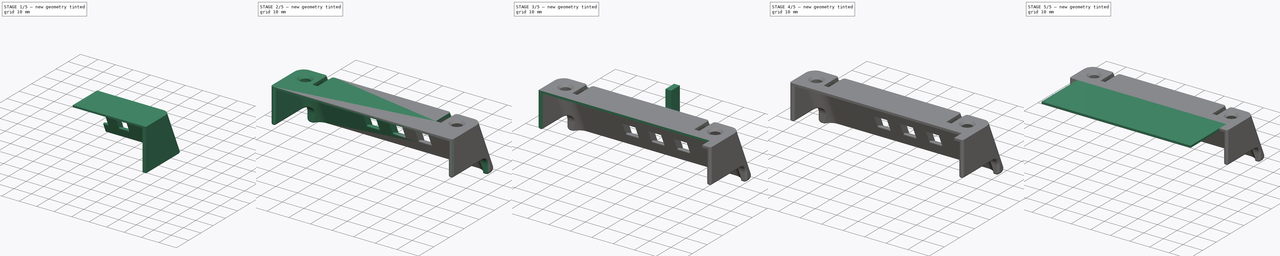
[diagram: build sequence overview — one tinted view per stage of 5, left to right]
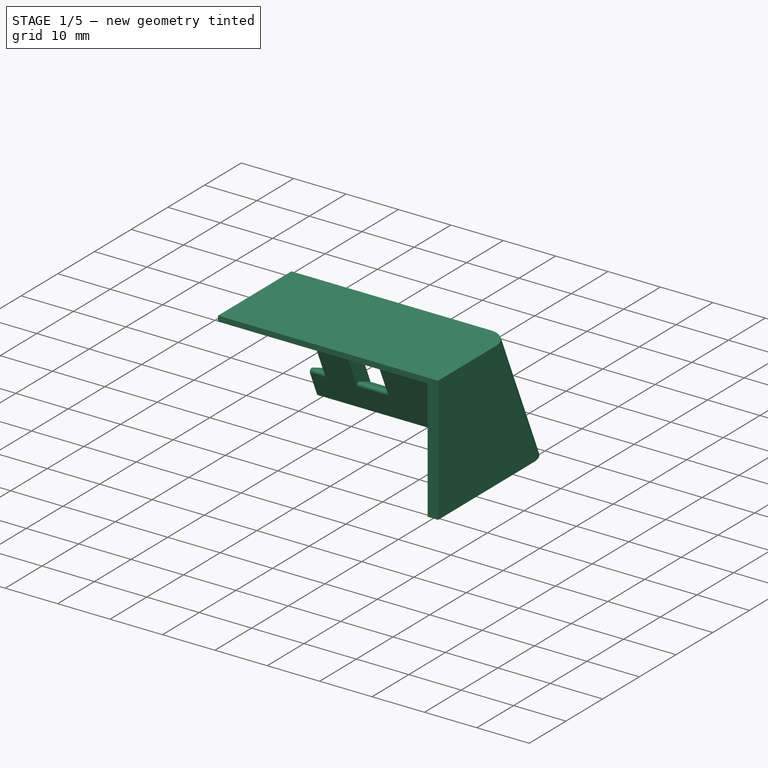
[diagram: stage 1 of 5 — iso view after this stage's code; geometry added in this stage tinted green]
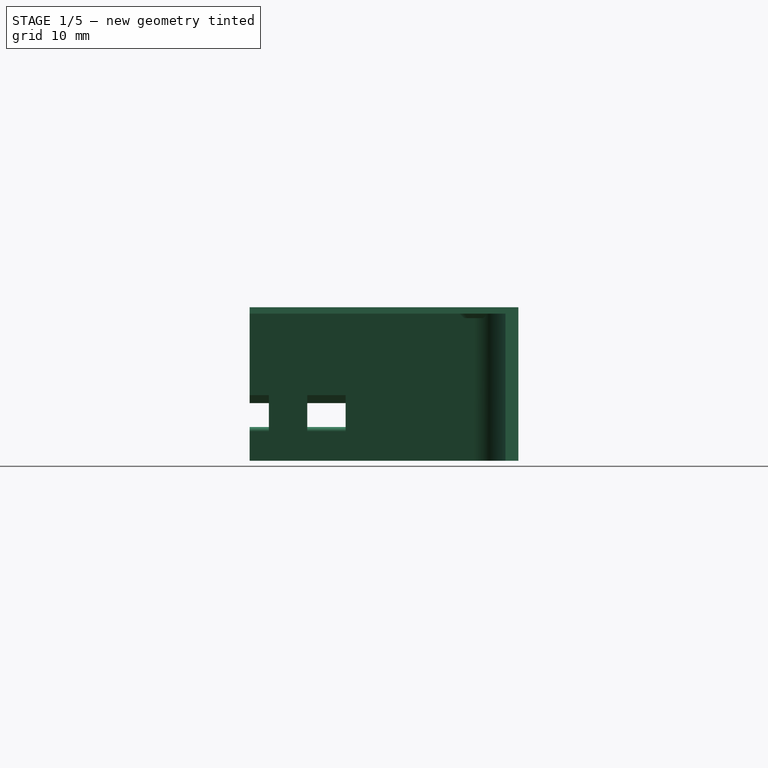
[diagram: stage 1 of 5 — front view after this stage's code; geometry added in this stage tinted green]
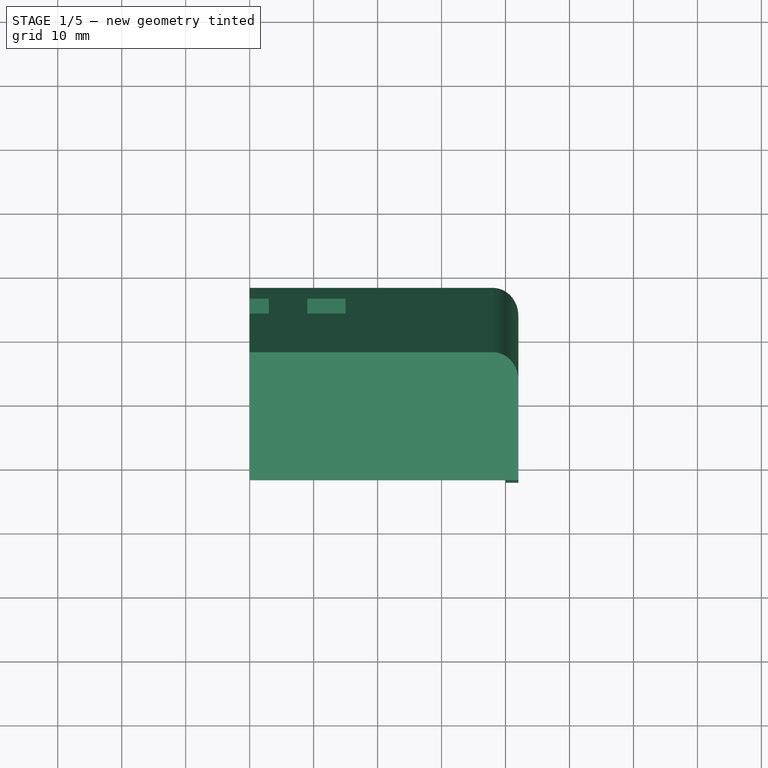
[diagram: stage 1 of 5 — top view after this stage's code; geometry added in this stage tinted green]
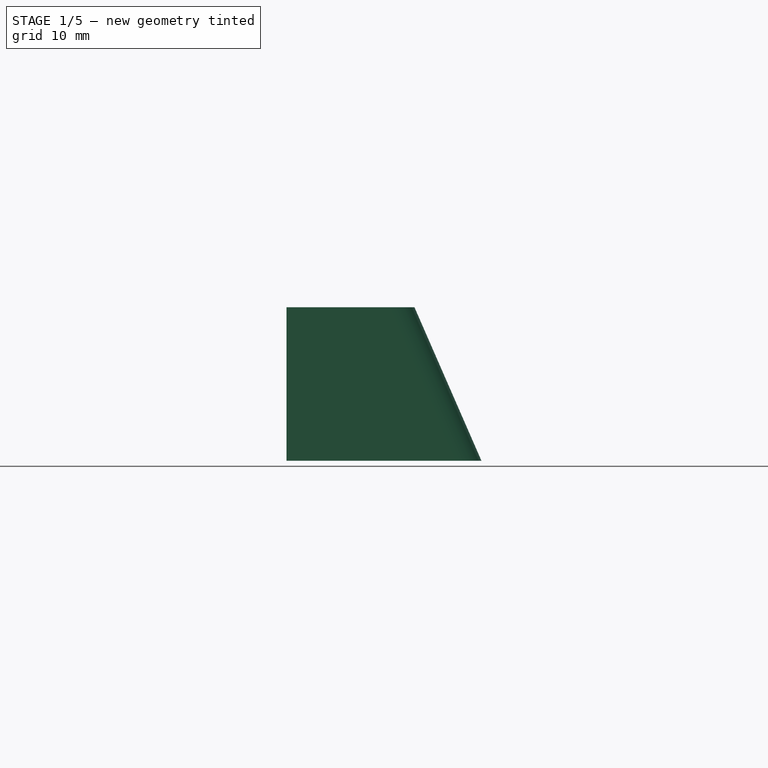
[diagram: stage 1 of 5 — right view after this stage's code; geometry added in this stage tinted green]
FCSTD DOCUMENT  (FreeCAD 0.16RUnknown)
Label: StringTensioner
License: All rights reserved
LicenseURL: http://en.wikipedia.org/wiki/All_rights_reserved
objects: Sketcher::SketchObject×14, Part::Fillet×12, Part::FeaturePython×10, Part::Cut×8, PartDesign::Pad×7, Part::Feature×3, Part::Extrusion×3, App::DocumentObjectGroup×3, PartDesign::Revolution×2, PartDesign::Pocket×2, Part::MultiFuse×2, Part::Box×1, Spreadsheet::Sheet×1, Part::Cylinder×1, Part::Mirroring×1, PartDesign::Draft×1
note: 78 computed .brp shape members not serialized (recipe doc carries the construction recipe); baked Part::Feature solids carry a one-line shape summary decoded from their .brp

FEATURE [Sketcher::SketchObject] Sketch  label="UnderCut"
  Placement = pos=(0,0,0) rot=(0.57735,0.57735,0.57735;2.0944rad)
  sketch-geometry (4):
    g0: LineSegment StartX=0 StartY=-1 StartZ=0 EndX=25 EndY=-1 EndZ=0
    g1: LineSegment StartX=25 StartY=-1 StartZ=0 EndX=38.093 EndY=-31 EndZ=0
    g2: LineSegment StartX=38.093 StartY=-31 StartZ=0 EndX=0 EndY=-31 EndZ=0
    g3: LineSegment StartX=0 StartY=-31 StartZ=0 EndX=0 EndY=-1 EndZ=0
  constraints (12):
    c: Coincident(g0,g1)
    c: Coincident(g1,g2)
    c: Coincident(g2,g3)
    c: Vertical(g3)
    c: Horizontal(g2)
    c: Horizontal(g0)
    c: Coincident(g3,g0)
    c: DistanceY(g0) = -1
    c: PointOnObject(g0,g-2)
    c: DistanceY(g3,g3) = 30
    c: DistanceX(g0,g0) = 25
    c: Angle(g0,g1) = 1.98231
FEATURE [PartDesign::Pad] Pad  label="UnderCut001"
  Length = 40
  Length2 = 100
  Placement = pos=(0,0,0) rot=(0.57735,0.57735,0.57735;2.0944rad)
  Sketch = -> Sketch
  Type = 0
FEATURE [Part::Fillet] Fillet  label="UnderCut002"
  Base = -> Pad
  Edges = 1 edges r=5: [Edge7]
FEATURE [Sketcher::SketchObject] Sketch001  label="Base"
  Placement = pos=(0,0,0) rot=(0.57735,0.57735,0.57735;2.0944rad)
  sketch-geometry (4):
    g0: LineSegment StartX=8 StartY=0 StartZ=0 EndX=8 EndY=-24 EndZ=0
    g1: LineSegment StartX=8 StartY=-24 StartZ=0 EndX=38.4744 EndY=-24 EndZ=0
    g2: LineSegment StartX=38.4744 StartY=-24 StartZ=0 EndX=28 EndY=0 EndZ=0
    g3: LineSegment StartX=28 StartY=0 StartZ=0 EndX=8 EndY=0 EndZ=0
  constraints (12):
    c: Coincident(g0,g1)
    c: Coincident(g1,g2)
    c: Coincident(g2,g3)
    c: Coincident(g3,g0)
    c: Horizontal(g3)
    c: Horizontal(g1)
    c: Vertical(g0)
    c: PointOnObject(g0,g-1)
    c: DistanceY(g0,g0) = 24
    c: Angle(g3,g2) = 1.98231
    c: DistanceX(g2) = 28
    c: DistanceX(g0) = 8
FEATURE [PartDesign::Pad] Pad001  label="Base001"
  Length = 42
  Length2 = 100
  Placement = pos=(0,0,0) rot=(0.57735,0.57735,0.57735;2.0944rad)
  Sketch = -> Sketch001
  Type = 0
FEATURE [Part::Cut] Cut
  Base = -> Pad001
  Tool = -> Fillet
FEATURE [Part::Fillet] Fillet001
  Base = -> Cut
  Edges = 1 edges r=4: [Edge21]
FEATURE [Sketcher::SketchObject] Sketch002  label="TieHoles"
  Placement = pos=(0,23.5201,10.2649) rot=(0,0.547724,0.836659;3.14159rad)
  Support = -> Fillet001 [Face2]
  sketch-geometry (9):
    g0: LineSegment StartX=-9 StartY=-28 StartZ=0 EndX=-15 EndY=-28 EndZ=0
    g1: LineSegment StartX=-15 StartY=-28 StartZ=0 EndX=-15 EndY=-33 EndZ=0
    g2: LineSegment StartX=-15 StartY=-33 StartZ=0 EndX=-9 EndY=-33 EndZ=0
    g3: LineSegment StartX=-9 StartY=-33 StartZ=0 EndX=-9 EndY=-28 EndZ=0
    g4: GeomPoint [constr] X=-12 Y=-30.5 Z=0
    g5: LineSegment StartX=-3 StartY=-28 StartZ=0 EndX=0 EndY=-28 EndZ=0
    g6: LineSegment StartX=0 StartY=-28 StartZ=0 EndX=0 EndY=-33 EndZ=0
    g7: LineSegment StartX=0 StartY=-33 StartZ=0 EndX=-3 EndY=-33 EndZ=0
    g8: LineSegment StartX=-3 StartY=-33 StartZ=0 EndX=-3 EndY=-28 EndZ=0
  constraints (25):
    c: Coincident(g0,g1)
    c: Coincident(g1,g2)
    c: Coincident(g2,g3)
    c: Coincident(g3,g0)
    c: Horizontal(g0)
    c: Horizontal(g2)
    c: Vertical(g1)
    c: Vertical(g3)
    c: DistanceX(g4) = -12
    c: DistanceY(g3,g3) = 5
    c: Symmetric(g0,g2,g4)
    c: DistanceX(g0,g0) = 6
    c: Coincident(g5,g6)
    c: Coincident(g6,g7)
    c: Coincident(g7,g8)
    c: Coincident(g8,g5)
    c: Horizontal(g5)
    c: Horizontal(g7)
    c: Vertical(g6)
    c: Vertical(g8)
    c: PointOnObject(g5,g0)
    c: PointOnObject(g7,g2)
    c: PointOnObject(g6,g-2)
    c: DistanceX(g5,g5) = 3
    c: DistanceY(g4) = -30.5
FEATURE [Part::Extrusion] Extrude  label="TieHoles001"
  Base = -> Sketch002
  Dir = (0,-5,2)
  Solid = true
FEATURE [Part::Cut] Cut001
  Base = -> Fillet001
  Tool = -> Extrude
FEATURE [Part::Fillet] Fillet002
  Base = -> Cut001
  Edges = 4 edges r=0.5: [Edge12,Edge16,Edge30,Edge35]
FEATURE [Sketcher::SketchObject] Sketch003  label="CounterSink"
  Placement = pos=(0,0,0) rot=(1,0,0;1.5708rad)
  sketch-geometry (4):
    g0: LineSegment StartX=0 StartY=0 StartZ=0 EndX=3.2 EndY=0 EndZ=0
    g1: LineSegment StartX=0 StartY=0 StartZ=0 EndX=0 EndY=-1.7 EndZ=0
    g2: LineSegment StartX=0 StartY=-1.7 StartZ=0 EndX=1.5 EndY=-1.7 EndZ=0
    g3: LineSegment StartX=1.5 StartY=-1.7 StartZ=0 EndX=3.2 EndY=0 EndZ=0
  constraints (11):
    c: Coincident(g1,g0)
    c: Vertical(g1)
    c: Horizontal(g0)
    c: Coincident(g0,g-1)
    c: Coincident(g2,g3)
    c: Coincident(g2,g1)
    c: Horizontal(g2)
    c: DistanceX(g2,g2) = 1.5
    c: Coincident(g3,g0)
    c: Angle(g0,g3) = 0.785398
    c: DistanceY(g1,g1) = 1.7
FEATURE [PartDesign::Revolution] Revolution  label="M3CounterSink"
  Angle = 360
  Axis = (0,0,1)
  Base = (0,0,0)
  Placement = pos=(0,0,0) rot=(1,0,0;1.5708rad)
  ReferenceAxis = -> Sketch003 [V_Axis]
  Reversed = true
  Sketch = -> Sketch003
FEATURE [Part::FeaturePython] Clone  label="Clone of M3CounterSink"  # Draft clone (typed FeaturePython)
  Objects = -> [Revolution]
  Placement = pos=(35,21,0) rot=(1,0,0;1.5708rad)
  Scale = (1,1,1)
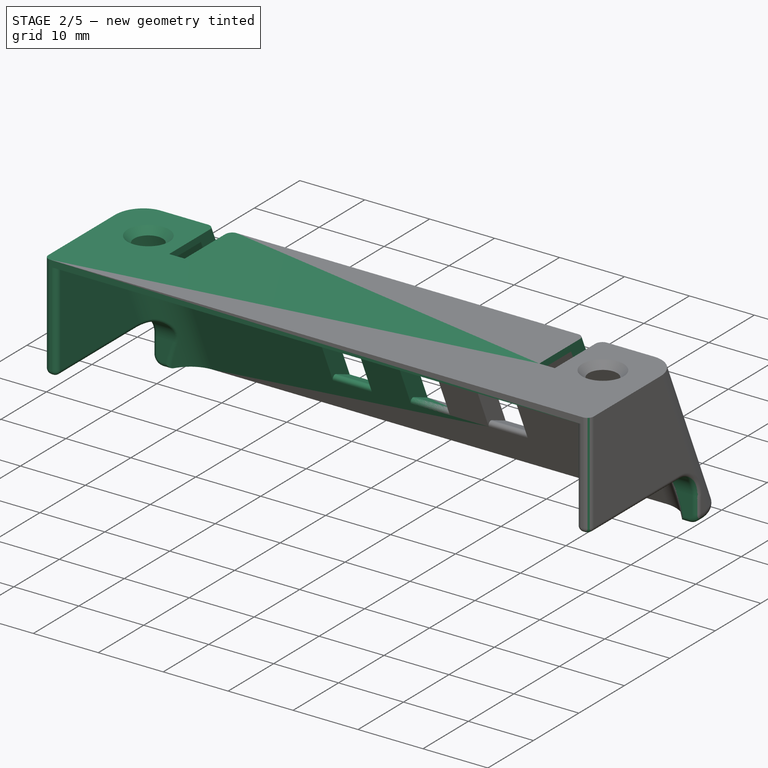
[diagram: stage 2 of 5 — iso view after this stage's code; geometry added in this stage tinted green]
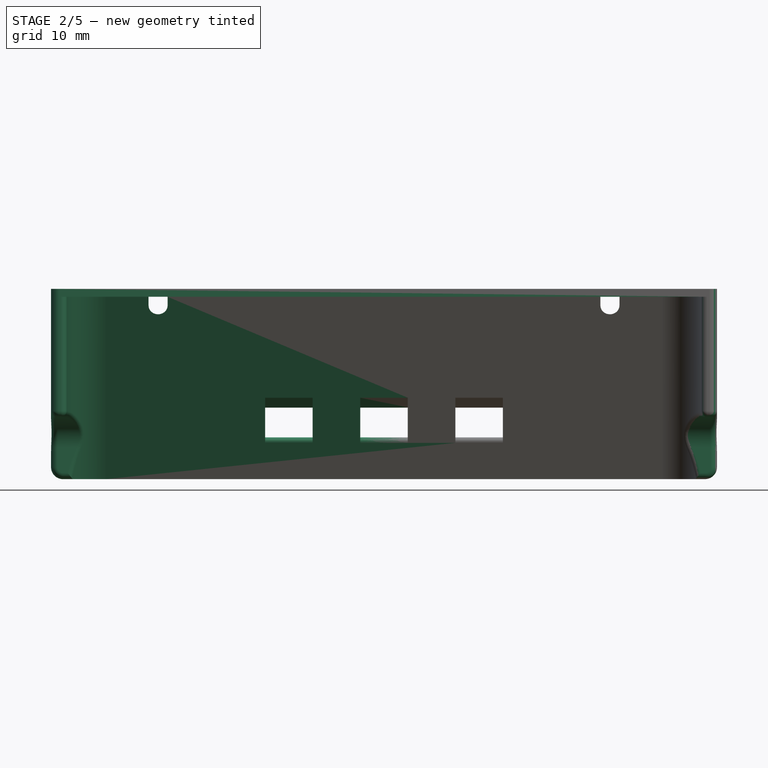
[diagram: stage 2 of 5 — front view after this stage's code; geometry added in this stage tinted green]
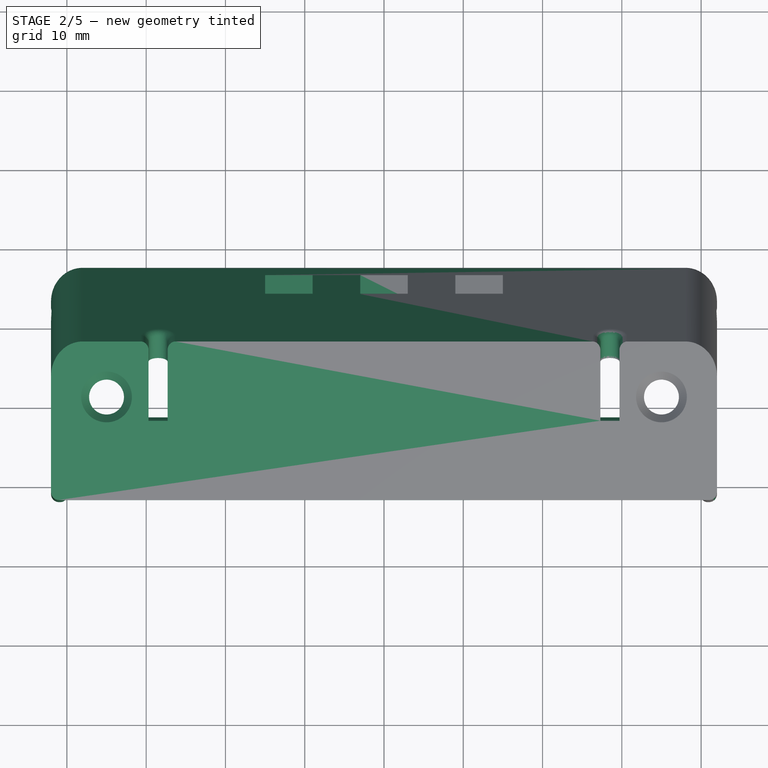
[diagram: stage 2 of 5 — top view after this stage's code; geometry added in this stage tinted green]
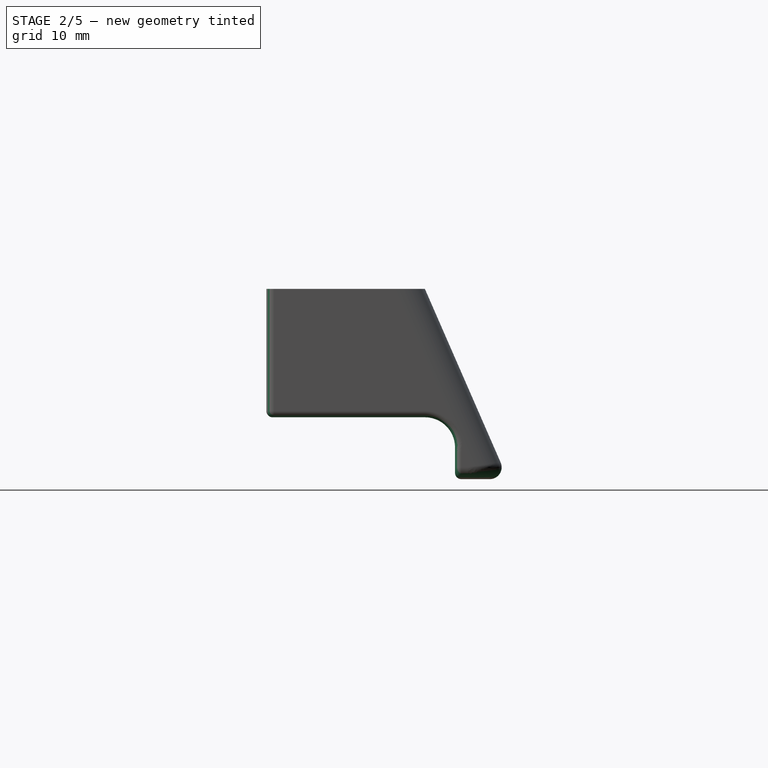
[diagram: stage 2 of 5 — right view after this stage's code; geometry added in this stage tinted green]
FEATURE [Part::Cut] Cut002  label="CounterSinkCut"
  Base = -> Fillet002
  Tool = -> Clone
FEATURE [Part::Fillet] Fillet003
  Base = -> Cut002
  Edges = 1 edges r=1.5: [Edge7]
FEATURE [Sketcher::SketchObject] Sketch005  label="StringPath"
  Placement = pos=(0,23.5201,10.2649) rot=(0,0.547724,0.836659;3.14159rad)
  Support = -> Fillet003 [Face1]
  sketch-geometry (4):
    g0: ArcOfCircle CenterX=-28.5 CenterY=-13.5 CenterZ=0 NormalX=0 NormalY=0 NormalZ=1 Radius=1.2 StartAngle=3.14159 EndAngle=6.28319
    g1: LineSegment StartX=-29.7 StartY=-13.5 StartZ=0 EndX=-29.7 EndY=-9.82157 EndZ=0
    g2: LineSegment StartX=-29.7 StartY=-9.82157 StartZ=0 EndX=-27.3 EndY=-9.82157 EndZ=0
    g3: LineSegment StartX=-27.3 StartY=-9.82157 StartZ=0 EndX=-27.3 EndY=-13.5 EndZ=0
  constraints (12):
    c: Coincident(g1,g2)
    c: Coincident(g2,g3)
    c: Coincident(g1,g0)
    c: Coincident(g3,g0)
    c: Vertical(g1)
    c: Vertical(g3)
    c: Horizontal(g2)
    c: Tangent(g0,g1)
    c: Tangent(g3,g0)
    c: DistanceX(g0) = -28.5
    c: Radius(g0) = 1.2
    c: DistanceY(g0) = -13.5
FEATURE [Part::Extrusion] Extrude001  label="StringPath001"
  Base = -> Sketch005
  Dir = (0,-10,0)
  Solid = true
FEATURE [Part::Cut] Cut003
  Base = -> Fillet003
  Tool = -> Extrude001
FEATURE [Part::Fillet] Fillet004  label="NiceFillet"
  Base = -> Cut003
  Edges = 1 edges r=1: [Edge9]
FEATURE [Part::Fillet] Fillet005
  Base = -> Fillet004
  Edges = 1 edges r=1: [Edge76]
FEATURE [Part::Feature] LYcarriage_step1_01001  label="LYcarriage"
  Placement = pos=(-30,0,-36) rot=(0,0,1;0rad)
  shape: bbox 37 x 62 x 39 mm, 139 faces (baked)
FEATURE [App::DocumentObjectGroup] Group  label="Reference"
  Group = -> [Fusion002001,Box002,Clone001,Clone002,Clone003,Clone004,Clone005,Clone006,LYcarriage_step1_01001]
FEATURE [Sketcher::SketchObject] Sketch013  label="AntiCollitionCut"
  Placement = pos=(42,0,0) rot=(0.57735,0.57735,0.57735;2.0944rad)
  Support = -> Fillet005 [Face2]
  sketch-geometry (5):
    g0: LineSegment StartX=-1.71827 StartY=-16.2 StartZ=0 EndX=28 EndY=-16.2 EndZ=0
    g1: LineSegment StartX=31.8 StartY=-20 StartZ=0 EndX=31.8 EndY=-28.8814 EndZ=0
    g2: LineSegment StartX=31.8 StartY=-28.8814 StartZ=0 EndX=-1.71827 EndY=-28.8814 EndZ=0
    g3: LineSegment StartX=-1.71827 StartY=-28.8814 StartZ=0 EndX=-1.71827 EndY=-16.2 EndZ=0
    g4: ArcOfCircle CenterX=28 CenterY=-20 CenterZ=0 NormalX=0 NormalY=0 NormalZ=1 Radius=3.8 StartAngle=0 EndAngle=1.5708
  constraints (12):
    c: Coincident(g1,g2)
    c: Coincident(g2,g3)
    c: Coincident(g3,g0)
    c: Horizontal(g0)
    c: Horizontal(g2)
    c: Vertical(g1)
    c: Vertical(g3)
    c: Tangent(g0,g4) = 1.5708
    c: Tangent(g1,g4) = 1.5708
    c: DistanceX(g4) = 28
    c: DistanceY(g4) = -20
    c: Radius(g4) = 3.8
FEATURE [PartDesign::Pocket] Pocket001  label="AntiCollitionCut001"
  Length = 5
  Sketch = -> Sketch013
  Type = 1
FEATURE [Part::Fillet] Fillet012
  Base = -> Pocket001
  Edges = 3 edges r=0.8: [Edge24,Edge27,Edge72]
FEATURE [Part::Mirroring] Part__Mirroring  label="Fillet012 (Mirror #1)"
  Base = (0,0,0)
  Normal = (1,0,0)
  Source = -> Fillet012
FEATURE [Part::MultiFuse] Fusion  label="Mirroring"
  Shapes = -> [Part__Mirroring,Fillet012]
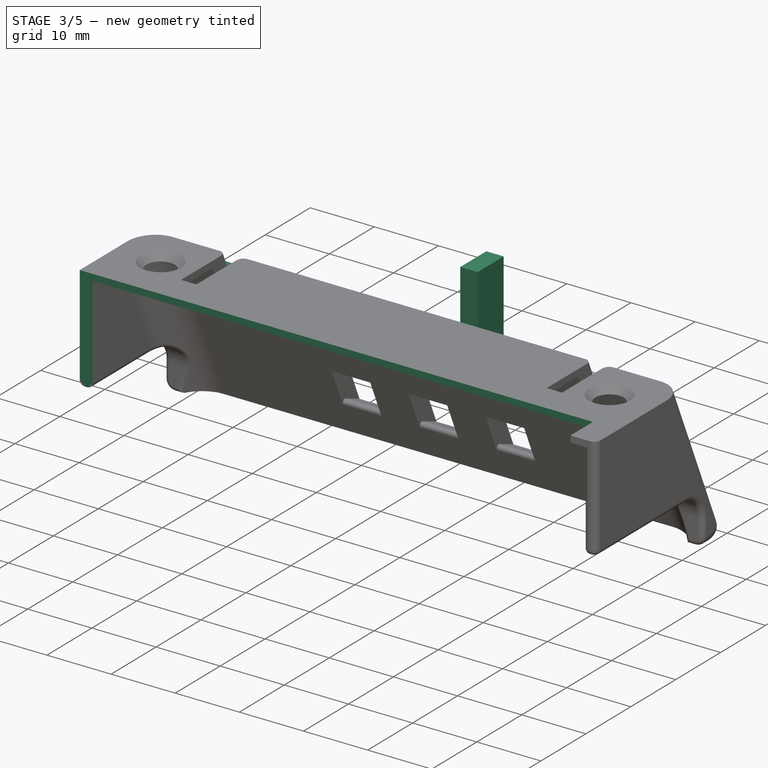
[diagram: stage 3 of 5 — iso view after this stage's code; geometry added in this stage tinted green]
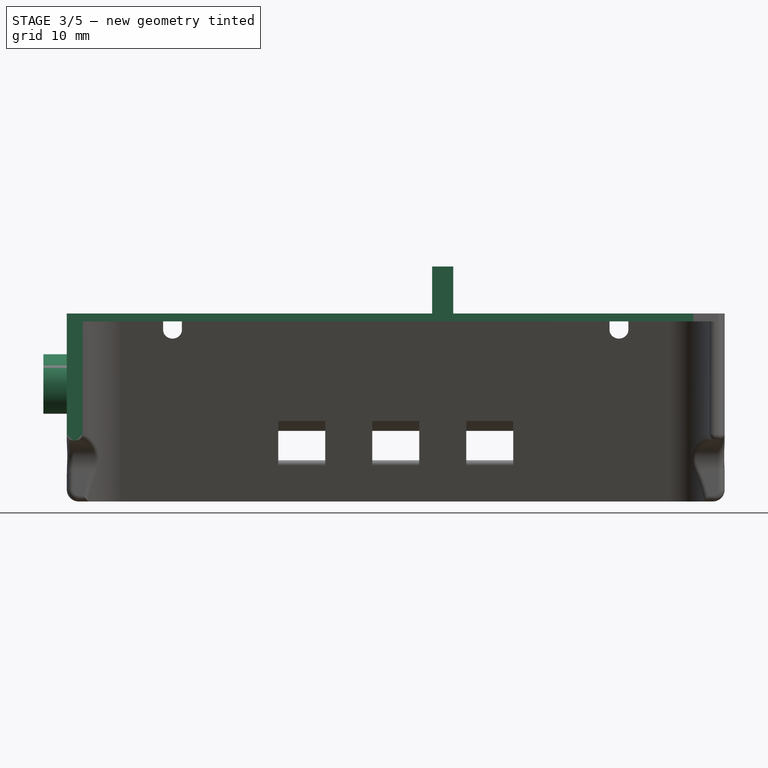
[diagram: stage 3 of 5 — front view after this stage's code; geometry added in this stage tinted green]
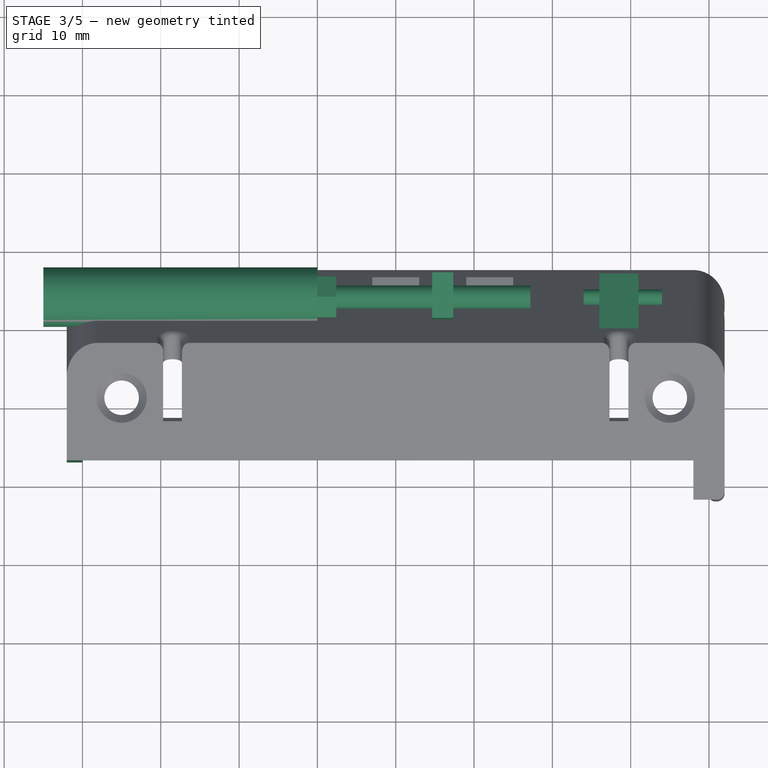
[diagram: stage 3 of 5 — top view after this stage's code; geometry added in this stage tinted green]
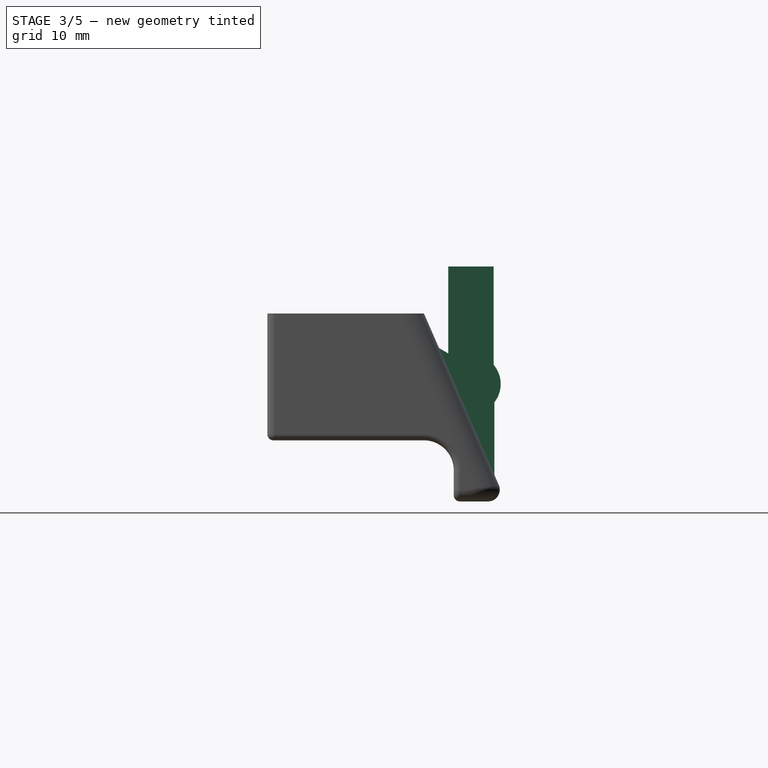
[diagram: stage 3 of 5 — right view after this stage's code; geometry added in this stage tinted green]
FEATURE [Sketcher::SketchObject] Sketch008  label="M3Nut"
  sketch-geometry (7):
    g0: LineSegment StartX=2.60241 StartY=-1.5025 StartZ=0 EndX=2.60241 EndY=1.5025 EndZ=0
    g1: LineSegment StartX=2.60241 StartY=1.5025 StartZ=0 EndX=0 EndY=3.005 EndZ=0
    g2: LineSegment StartX=0 StartY=3.005 StartZ=0 EndX=-2.60241 EndY=1.5025 EndZ=0
    g3: LineSegment StartX=-2.60241 StartY=1.5025 StartZ=0 EndX=-2.60241 EndY=-1.5025 EndZ=0
    g4: LineSegment StartX=-2.60241 StartY=-1.5025 StartZ=0 EndX=0 EndY=-3.005 EndZ=0
    g5: LineSegment StartX=0 StartY=-3.005 StartZ=0 EndX=2.60241 EndY=-1.5025 EndZ=0
    g6: Circle [constr] CenterX=0 CenterY=0 CenterZ=0 NormalX=0 NormalY=0 NormalZ=1 Radius=3.005
  constraints (16):
    c: Coincident(g0,g1)
    c: Coincident(g1,g2)
    c: Coincident(g2,g3)
    c: Coincident(g3,g4)
    c: Coincident(g4,g5)
    c: Coincident(g5,g0)
    c: Equal(g0, g1-g5) x5
    c: PointOnObject(g0,g6)
    c: PointOnObject(g1,g6)
    c: PointOnObject(g2,g6)
    c: PointOnObject(g3,g6)
    c: PointOnObject(g4,g6)
    c: PointOnObject(g5,g6)
    c: Coincident(g6,g-1)
    c: Radius(g6) = 3.005
    c: Vertical(g3)
FEATURE [PartDesign::Pad] Pad004  label="M3Nut001"
  Length = 2.4
  Length2 = 100
  Sketch = -> Sketch008
  Type = 0
FEATURE [Part::FeaturePython] Clone003  label="Clone of M3Nut002"  # Draft clone (typed FeaturePython)
  Objects = -> [Pad004]
  Placement = pos=(-10,34,-9) rot=(0,1,0;1.5708rad)
  Scale = (1,1,1)
FEATURE [Sketcher::SketchObject] Sketch010  label="Lane"
  Placement = pos=(1,34,-9) rot=(0,0.707107,0.707107;3.14159rad)
  sketch-geometry (6):
    g0: LineSegment StartX=-16.2014 StartY=1.5 StartZ=0 EndX=-16.2014 EndY=0 EndZ=0
    g1: LineSegment StartX=-16.2014 StartY=0 StartZ=0 EndX=45.9934 EndY=0 EndZ=0
    g2: LineSegment StartX=45.9934 StartY=0 StartZ=0 EndX=45.9934 EndY=3.8 EndZ=0
    g3: LineSegment StartX=45.9934 StartY=3.8 StartZ=0 EndX=11 EndY=3.8 EndZ=0
    g4: LineSegment StartX=11 StartY=3.8 StartZ=0 EndX=11 EndY=1.5 EndZ=0
    g5: LineSegment StartX=11 StartY=1.5 StartZ=0 EndX=-16.2014 EndY=1.5 EndZ=0
  constraints (16):
    c: Coincident(g0,g1)
    c: Coincident(g1,g2)
    c: Coincident(g2,g3)
    c: Coincident(g3,g4)
    c: Coincident(g4,g5)
    c: Coincident(g5,g0)
    c: Horizontal(g5)
    c: Horizontal(g1)
    c: Horizontal(g3)
    c: Vertical(g0)
    c: Vertical(g4)
    c: Vertical(g2)
    c: DistanceY(g0,g0) = 1.5
    c: DistanceY(g2,g2) = 3.8
    c: PointOnObject(g0,g-1)
    c: DistanceX(g3) = 11
FEATURE [PartDesign::Revolution] Revolution001  label="Lane001"
  Angle = 360
  Axis = (-1,0,0)
  Base = (1,34,-9)
  Placement = pos=(1,34,-9) rot=(0,0.707107,0.707107;3.14159rad)
  ReferenceAxis = -> Sketch010 [H_Axis]
  Sketch = -> Sketch010
FEATURE [Part::FeaturePython] Clone007  label="Clone of Clone of M3Nut002"  # Draft clone (typed FeaturePython)
  Objects = -> [Clone003]
  Placement = pos=(-10,34,-9) rot=(0.57735,0.57735,0.57735;2.0944rad)
  Scale = (1,1,1)
FEATURE [Spreadsheet::Sheet] Spreadsheet  label="Params"
  cells = A1=Bolt Clearance; B1=0; A2=Nut Radius Clearance; B2=0.5; A3=Nut Height Clearance; B3=0.3; A4=Nut Side to side Clearance; B4=0.3
FEATURE [Sketcher::SketchObject] Sketch011  label="NutSlot"
  expr: Constraints[11] = 5.5 + Params.B4
  sketch-geometry (6):
    g0: LineSegment StartX=-14.9933 StartY=2.9 StartZ=0 EndX=-14.9933 EndY=-2.9 EndZ=0
    g1: LineSegment StartX=-14.9933 StartY=-2.9 StartZ=0 EndX=1.67432 EndY=-2.9 EndZ=0
    g2: LineSegment StartX=1.67432 StartY=-2.9 StartZ=0 EndX=3.34863 EndY=0 EndZ=0
    g3: LineSegment StartX=3.34863 StartY=0 StartZ=0 EndX=1.67432 EndY=2.9 EndZ=0
    g4: LineSegment StartX=1.67432 StartY=2.9 StartZ=0 EndX=-14.9933 EndY=2.9 EndZ=0
    g5: ArcOfCircle [constr] CenterX=0 CenterY=0 CenterZ=0 NormalX=0 NormalY=0 NormalZ=1 Radius=3.34863 StartAngle=5.23599 EndAngle=7.33038
  constraints (16):
    c: Coincident(g0,g1)
    c: Coincident(g1,g2)
    c: Coincident(g2,g3)
    c: Coincident(g3,g4)
    c: Coincident(g0,g4)
    c: Horizontal(g4)
    c: Horizontal(g1)
    c: Vertical(g0)
    c: PointOnObject(g2,g-1)
    c: Symmetric(g3,g1,g-1)
    c: Angle(g3,g2) = 2.0944
    c: DistanceY(g0,g0) = 5.8
    c: Coincident(g5,g-1)
    c: Coincident(g5,g3)
    c: Coincident(g5,g1)
    c: PointOnObject(g2,g5)
FEATURE [PartDesign::Pad] Pad006  label="NutSlot001"
  Length = 2.7
  Length2 = 100
  Midplane = true
  Sketch = -> Sketch011
  Type = 0
  expr: Length = 2.4 + Params.B3
FEATURE [Part::FeaturePython] Clone008  label="Clone of NutSlot001"  # Draft clone (typed FeaturePython)
  Objects = -> [Pad006]
  Placement = pos=(6,34,-9) rot=(0,1,0;1.5708rad)
  Scale = (1,1,1)
FEATURE [Sketcher::SketchObject] Sketch012  label="StringFix"
  Placement = pos=(0,0,0) rot=(0.57735,0.57735,0.57735;2.0944rad)
  sketch-geometry (3):
    g0: LineSegment StartX=-7.63217 StartY=4.40643 StartZ=0 EndX=0 EndY=-13.0812 EndZ=0
    g1: LineSegment StartX=0 StartY=-13.0812 StartZ=0 EndX=0 EndY=0 EndZ=0
    g2: LineSegment StartX=0 StartY=0 StartZ=0 EndX=-7.63217 EndY=4.40643 EndZ=0
  constraints (7):
    c: Coincident(g0,g1)
    c: Coincident(g1,g2)
    c: Coincident(g2,g0)
    c: Angle(g2,g1) = 2.0944
    c: Angle(g0,g-1) = 1.15928
    c: Angle(g2) = 2.61799
    c: Coincident(g1,g-1)
FEATURE [Part::Extrusion] Extrude002  label="StringFix001"
  Base = -> Sketch012
  Dir = (5,0,0)
  Placement = pos=(26,37,-8.5) rot=(0,0,1;0rad)
  Solid = true
FEATURE [Part::Cylinder] Cylinder  label="StringFixHole"
  Angle = 360
  Height = 10
  Radius = 1
FEATURE [App::DocumentObjectGroup] Group001  label="Bolt_src"
  Group = -> [Revolution,Pad003,Pad002,Pad004,Pad006,Cylinder]
FEATURE [Part::FeaturePython] Clone009  label="Clone of StringFixHole"  # Draft clone (typed FeaturePython)
  Objects = -> [Cylinder]
  Placement = pos=(24,34,-10) rot=(0,1,0;1.5708rad)
  Scale = (1,1,1)
FEATURE [Sketcher::SketchObject] Sketch004  label="SampleCut"
  Support = -> Fusion [Face83]
  sketch-geometry (4):
    g0: LineSegment StartX=38 StartY=13 StartZ=0 EndX=-47.7459 EndY=13 EndZ=0
    g1: LineSegment StartX=-47.7459 StartY=13 StartZ=0 EndX=-47.7459 EndY=-4.17168 EndZ=0
    g2: LineSegment StartX=-47.7459 StartY=-4.17168 StartZ=0 EndX=38 EndY=-4.17168 EndZ=0
    g3: LineSegment StartX=38 StartY=-4.17168 StartZ=0 EndX=38 EndY=13 EndZ=0
  constraints (10):
    c: Coincident(g0,g1)
    c: Coincident(g1,g2)
    c: Coincident(g2,g3)
    c: Coincident(g3,g0)
    c: Horizontal(g0)
    c: Horizontal(g2)
    c: Vertical(g1)
    c: Vertical(g3)
    c: DistanceX(g0) = 38
    c: DistanceY(g0) = 13
FEATURE [PartDesign::Pocket] Pocket
  Length = 5
  Sketch = -> Sketch004
  Type = 1
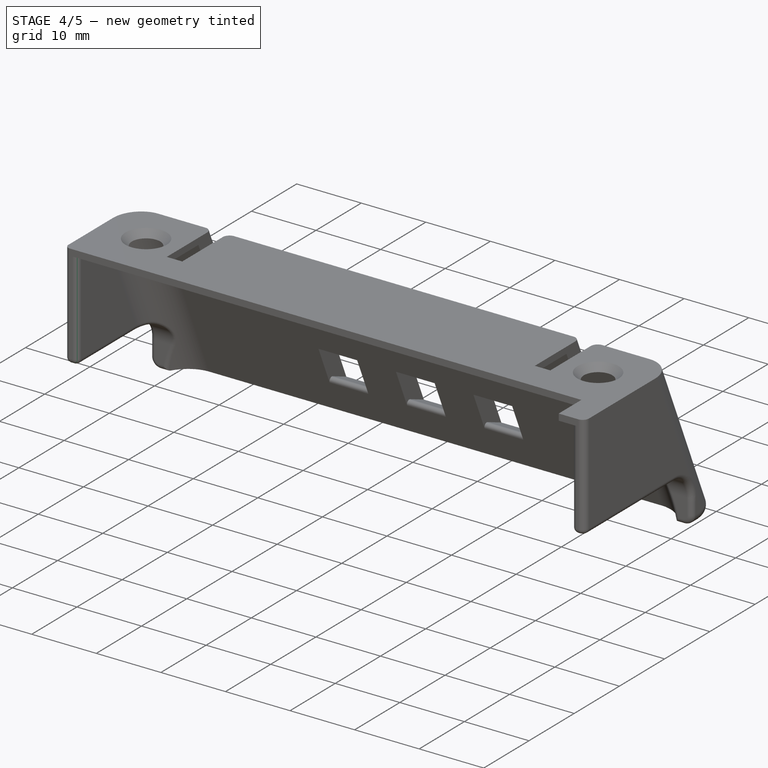
[diagram: stage 4 of 5 — iso view after this stage's code; geometry added in this stage tinted green]
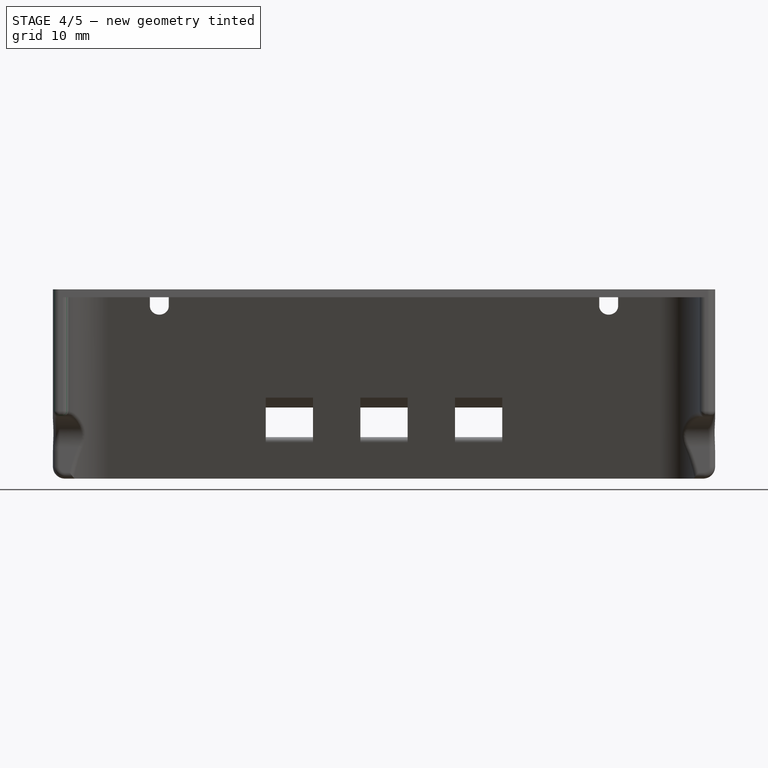
[diagram: stage 4 of 5 — front view after this stage's code; geometry added in this stage tinted green]
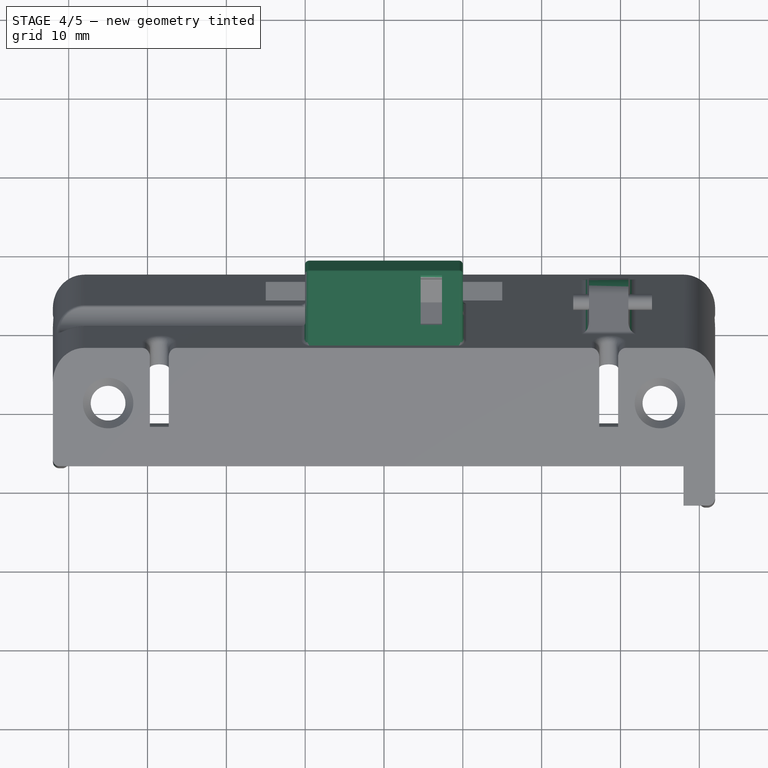
[diagram: stage 4 of 5 — top view after this stage's code; geometry added in this stage tinted green]
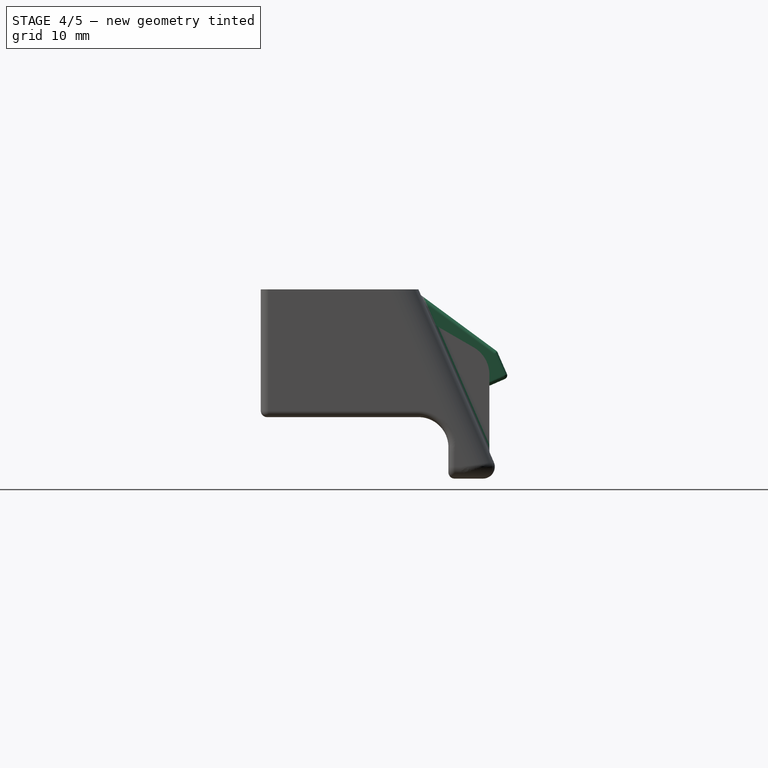
[diagram: stage 4 of 5 — right view after this stage's code; geometry added in this stage tinted green]
FEATURE [Part::Fillet] Fillet006
  Base = -> Pocket
  Edges = 1 edges r=0.8: [Edge93]
FEATURE [Sketcher::SketchObject] Sketch009  label="NutHousing"
  Placement = pos=(0,23.5201,10.2649) rot=(0,0.547724,0.836659;3.14159rad)
  Support = -> Fillet006 [Face9]
  sketch-geometry (4):
    g0: LineSegment StartX=-10 StartY=-12 StartZ=0 EndX=10 EndY=-12 EndZ=0
    g1: LineSegment StartX=10 StartY=-12 StartZ=0 EndX=10 EndY=-26 EndZ=0
    g2: LineSegment StartX=10 StartY=-26 StartZ=0 EndX=-10 EndY=-26 EndZ=0
    g3: LineSegment StartX=-10 StartY=-26 StartZ=0 EndX=-10 EndY=-12 EndZ=0
  constraints (12):
    c: Coincident(g0,g1)
    c: Coincident(g1,g2)
    c: Coincident(g2,g3)
    c: Coincident(g3,g0)
    c: Horizontal(g0)
    c: Horizontal(g2)
    c: Vertical(g1)
    c: Vertical(g3)
    c: DistanceX(g2,g2) = 20
    c: DistanceY(g1) = -26
    c: DistanceY(g0) = -12
    c: DistanceX(g0,g-1) = 10
FEATURE [PartDesign::Pad] Pad005  label="NutHousing001"
  Length = 6
  Length2 = 100
  Sketch = -> Sketch009
  Type = 0
FEATURE [PartDesign::Draft] Draft  label="PrintableDraft"
  Angle = 60
  Base = -> Pad005 [Face2]
  NeutralPlane = -> Pad005 [Face6]
FEATURE [Part::Cut] Cut004  label="LaneCut"
  Base = -> Draft
  Tool = -> Revolution001
FEATURE [Part::Fillet] Fillet007
  Base = -> Cut004
  Edges = 15 edges r=0.5: [Edge1,Edge2,Edge3,Edge4,Edge5,Edge7,Edge8,Edge9,Edge10,Edge11,Edge18,Edge19,Edge20,Edge21,Edge73]
FEATURE [Part::Cut] Cut005  label="NutCut"
  Base = -> Fillet007
  Tool = -> Clone007
FEATURE [Part::Cut] Cut006
  Base = -> Cut005
  Tool = -> Clone008
FEATURE [Part::Fillet] Fillet008  label="AntiCreaseFillet"
  Base = -> Cut006
  Edges = 2 edges r=0.3: [Edge25,Edge27]
FEATURE [Part::MultiFuse] Fusion002002  label="StringFix002"
  Shapes = -> [Fillet008,Extrude002]
FEATURE [Part::Fillet] Fillet009
  Base = -> Fusion002002
  Edges = 5 edges: [Edge54 r=1,Edge55 r=1,Edge56 r=1,Edge57 r=1,Edge161 r=4]
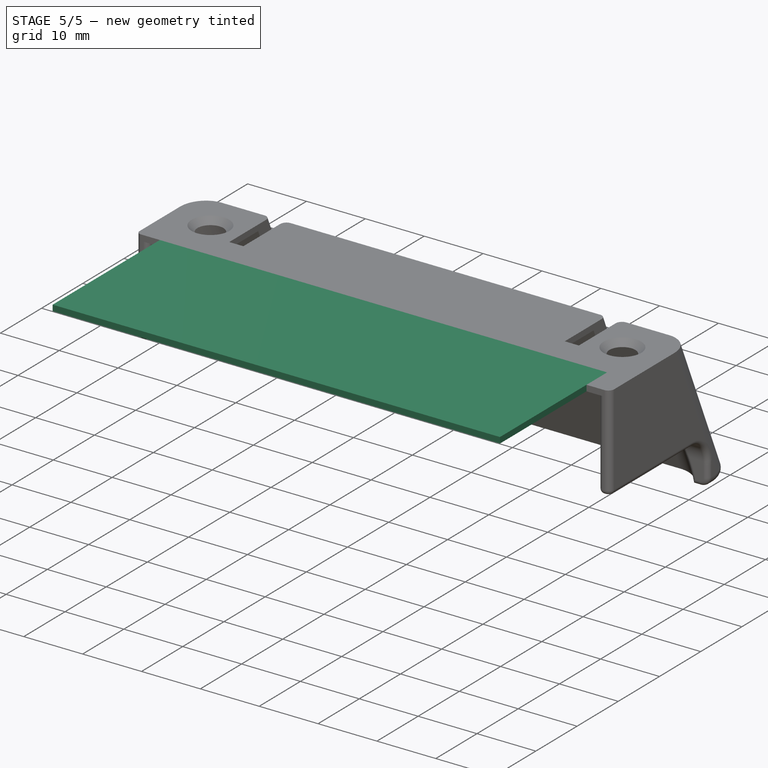
[diagram: stage 5 of 5 — iso view after this stage's code; geometry added in this stage tinted green]
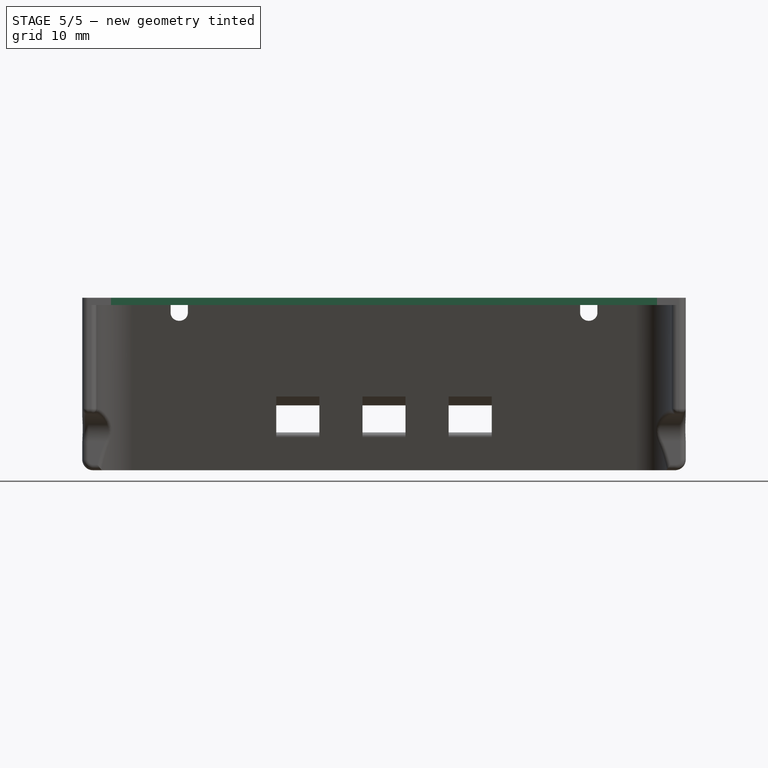
[diagram: stage 5 of 5 — front view after this stage's code; geometry added in this stage tinted green]
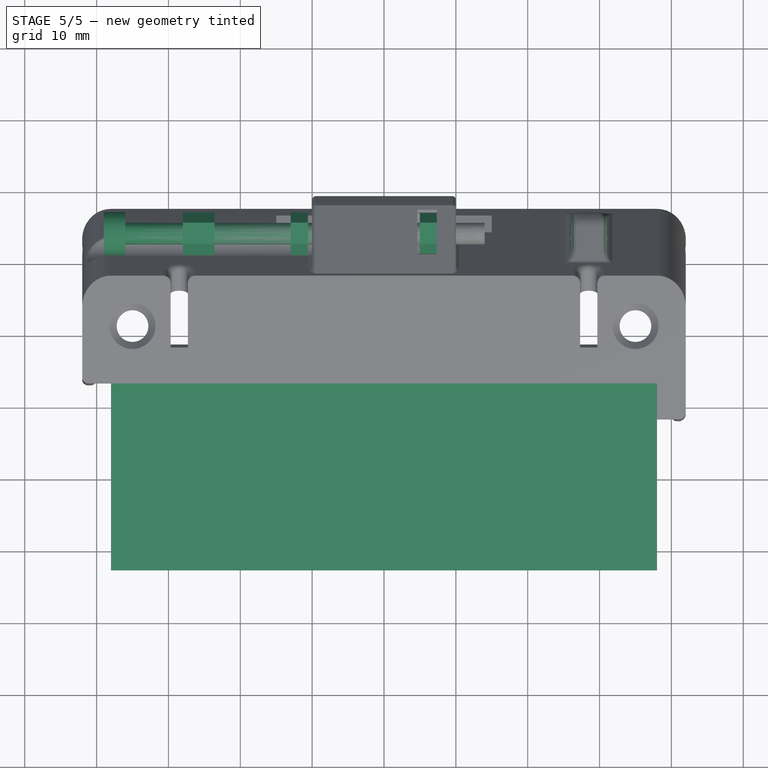
[diagram: stage 5 of 5 — top view after this stage's code; geometry added in this stage tinted green]
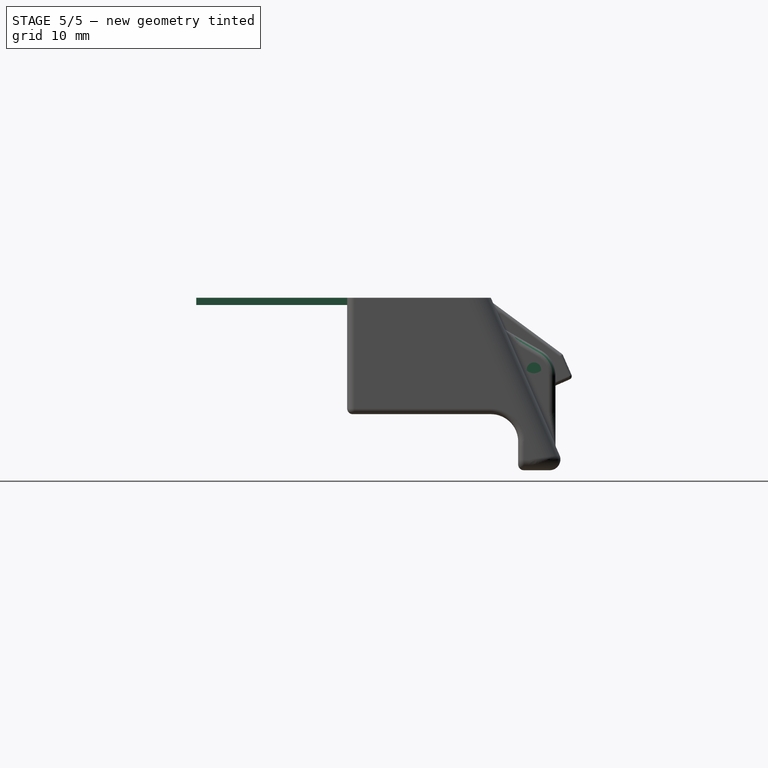
[diagram: stage 5 of 5 — right view after this stage's code; geometry added in this stage tinted green]
FEATURE [Part::Feature] Fusion002001  label="XCarriage"
  Placement = pos=(0,0,-1) rot=(0,0,1;3.14159rad)
  shape: bbox 81.03 x 70.18 x 40.02 mm, 182 faces (baked)
FEATURE [Part::Box] Box002  label="SampleMaster001"
  Height = 1
  Length = 26
  Placement = pos=(38,-13,-1) rot=(0,0,1;1.5708rad)
  Width = 76
FEATURE [Sketcher::SketchObject] Sketch006  label="M3Head"
  sketch-geometry (1):
    g0: Circle CenterX=0 CenterY=0 CenterZ=0 NormalX=0 NormalY=0 NormalZ=1 Radius=3
  constraints (2):
    c: Coincident(g0,g-1)
    c: Radius(g0) = 3
FEATURE [PartDesign::Pad] Pad002  label="M3Head001"
  Length = 3
  Length2 = 100
  Reversed = true
  Sketch = -> Sketch006
  Type = 0
FEATURE [Sketcher::SketchObject] Sketch007  label="M3Thread"
  Support = -> Pad002 [Face2]
  sketch-geometry (1):
    g0: Circle CenterX=0 CenterY=0 CenterZ=0 NormalX=0 NormalY=0 NormalZ=1 Radius=1.5
  constraints (2):
    c: Coincident(g0,g-1)
    c: Radius(g0) = 1.5
FEATURE [PartDesign::Pad] Pad003  label="M3Thread001"
  Length = 50
  Length2 = 100
  Sketch = -> Sketch007
  Type = 0
FEATURE [Part::FeaturePython] Clone001  label="Clone of M3Nut001"  # Draft clone (typed FeaturePython)
  Objects = -> [Pad004]
  Placement = pos=(5,34,-9) rot=(0,1,0;1.5708rad)
  Scale = (1,1,1)
FEATURE [Part::FeaturePython] Clone002  label="Clone of M3Thread001"  # Draft clone (typed FeaturePython)
  Objects = -> [Pad003]
  Placement = pos=(-36,34,-9) rot=(0,1,0;1.5708rad)
  Scale = (1,1,1)
FEATURE [Part::FeaturePython] Clone004  label="Clone of M3Nut003"  # Draft clone (typed FeaturePython)
  Objects = -> [Pad004]
  Placement = pos=(-13,34,-9) rot=(0,1,0;1.5708rad)
  Scale = (1,1,1)
FEATURE [Part::FeaturePython] Clone005  label="Clone of M3Nut004"  # Draft clone (typed FeaturePython)
  Objects = -> [Pad004]
  Placement = pos=(-26,34,-9) rot=(0,1,0;1.5708rad)
  Scale = (1,1,1)
FEATURE [Part::FeaturePython] Clone006  label="Clone of M3Nut005"  # Draft clone (typed FeaturePython)
  Objects = -> [Pad004]
  Placement = pos=(-28,34,-9) rot=(0,1,0;1.5708rad)
  Scale = (1,1,1)
FEATURE [Part::Fillet] Fillet010
  Base = -> Fillet009
  Edges = 2 edges r=1: [Edge178,Edge182]
FEATURE [Part::Cut] Cut007  label="StringFixHoleCut"
  Base = -> Fillet010
  Tool = -> Clone009
FEATURE [App::DocumentObjectGroup] Group002  label="src"
  Group = -> [Fillet005,Fusion,Fillet006,Pad005,Cut007]
FEATURE [Part::Feature] Cut007002  label="StringTensioner"
  shape: bbox 84.25 x 31.26 x 27.6 mm, 169 faces (baked)
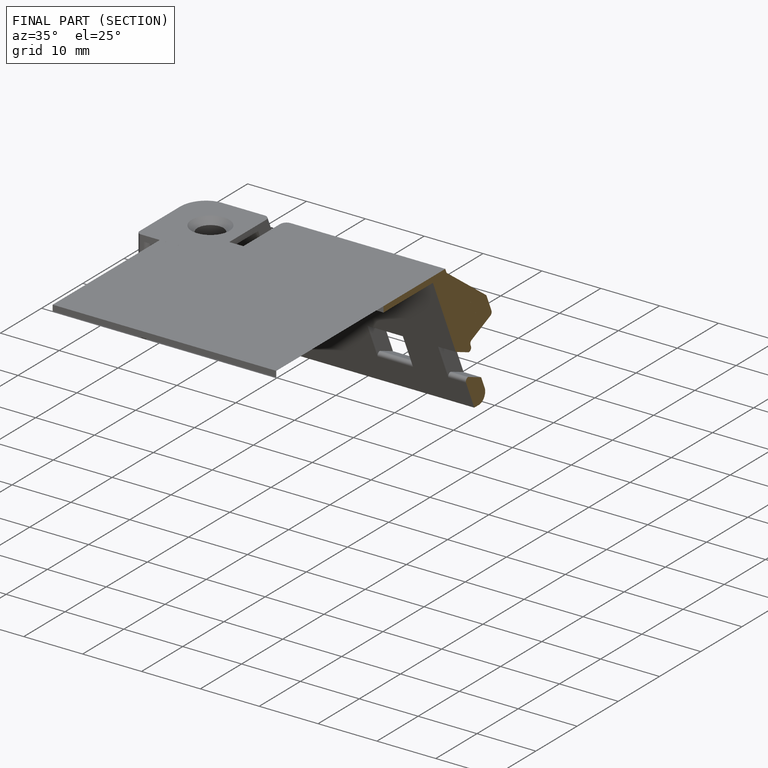
[diagram: finished part — half-section view (interior)]
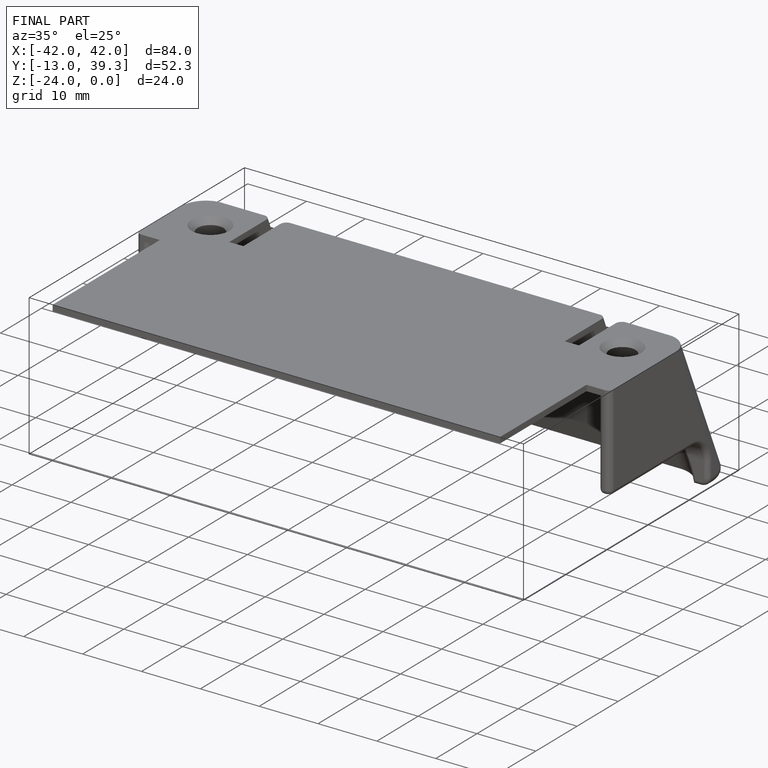
[diagram: finished part — iso view with bounding-box wireframe]
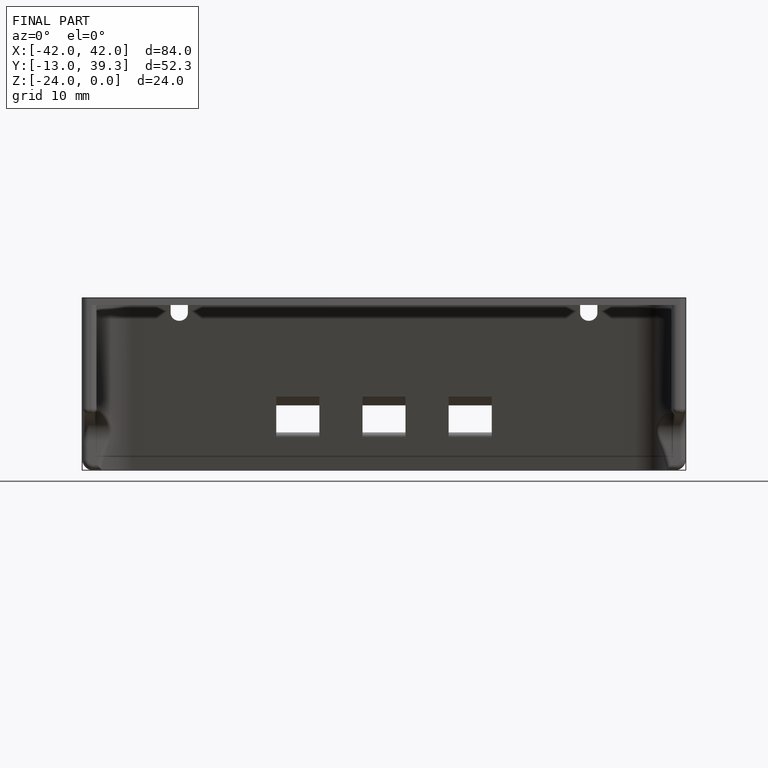
[diagram: finished part — front view with bounding-box wireframe]
